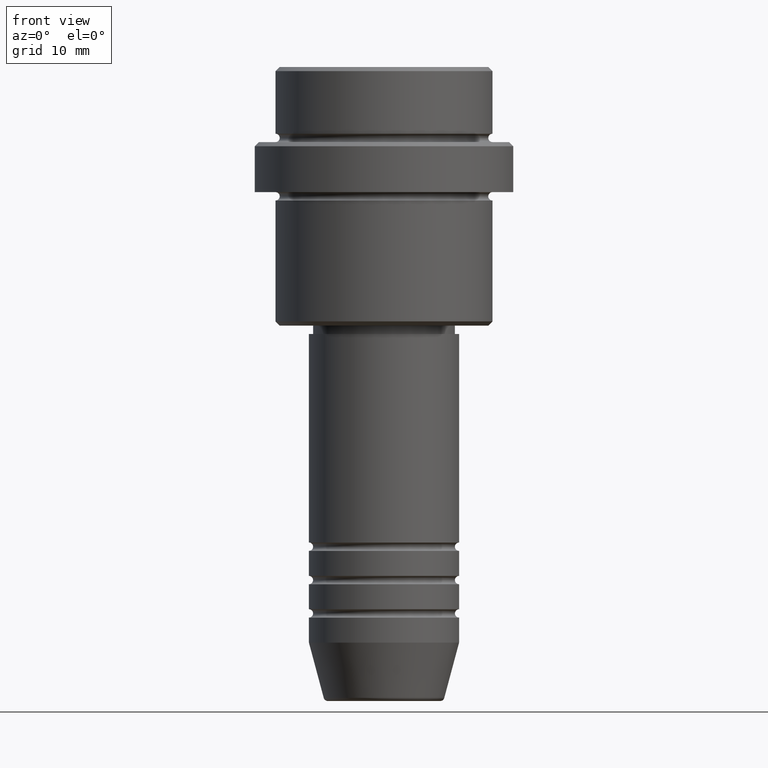
[diagram: clean part render]
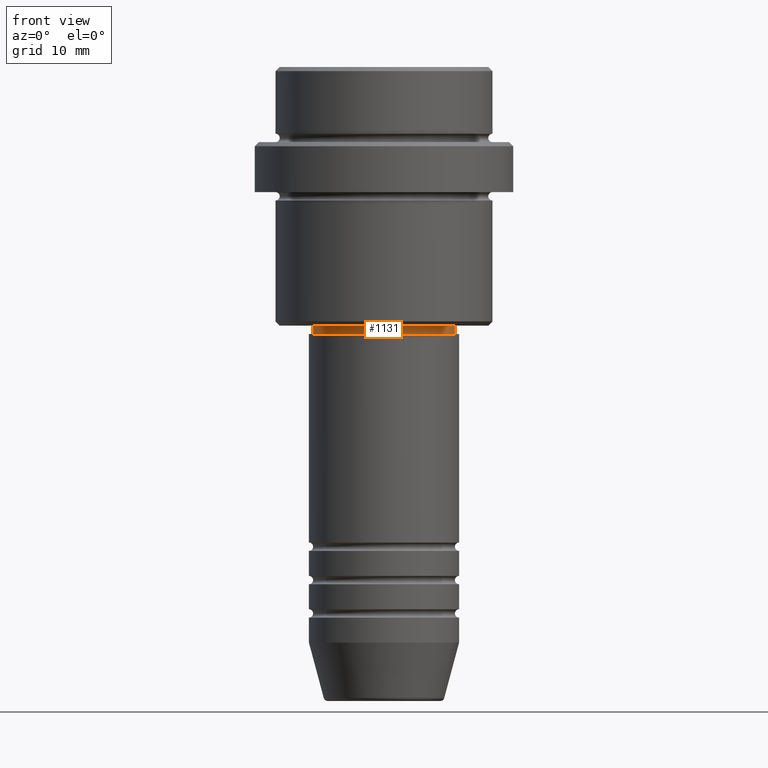
[diagram: same view with one face highlighted and labeled with its STEP entity id]
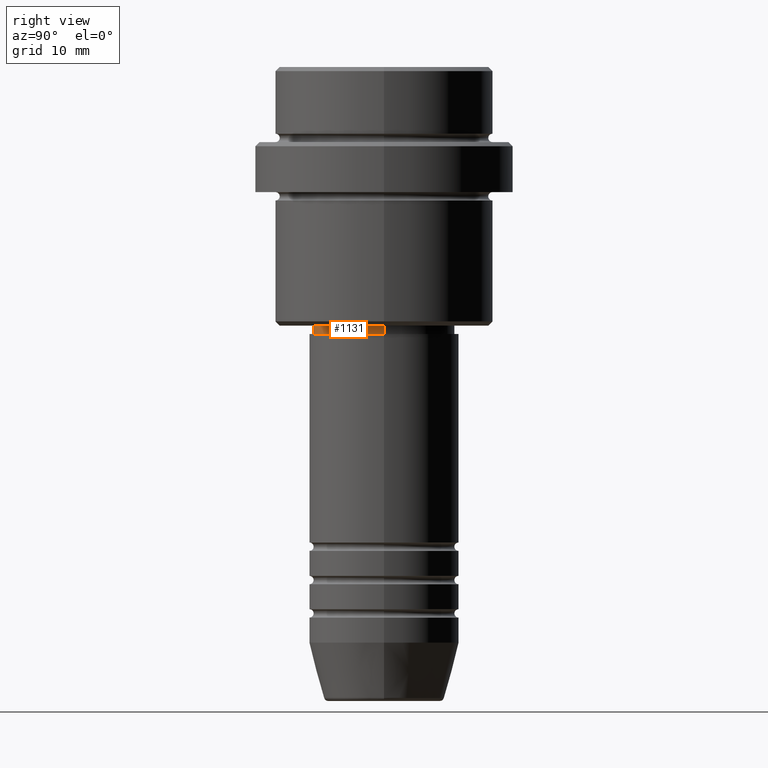
[diagram: same view with one face highlighted and labeled with its STEP entity id]
A machine part, front view. The second image highlights one B-rep face of the part: STEP entity #1131.
A second angle (right view) of the same face is appended — the face is thin or edge-on in the first view.
In plain terms, the highlighted cylindrical surface (partial cylindrical patch) has radius 8.5 mm, axis along (-0, -0, 1).
Its self-contained STEP definition (entity closure, byte-faithful):
#144 = VERTEX_POINT ( 'NONE', #1338 ) ;
#171 = CARTESIAN_POINT ( 'NONE',  ( 8.499999999999994671, 0.000000000000000000, -31.00000000000000000 ) ) ;
#183 = CARTESIAN_POINT ( 'NONE',  ( 8.499999999999996447, 0.000000000000000000, -32.00000000000000000 ) ) ;
#225 = CYLINDRICAL_SURFACE ( 'NONE', #483, 8.499999999999996447 ) ;
#231 = EDGE_CURVE ( 'NONE', #144, #246, #433, .T. ) ;
#244 = EDGE_CURVE ( 'NONE', #982, #144, #584, .T. ) ;
#246 = VERTEX_POINT ( 'NONE', #171 ) ;
#255 = DIRECTION ( 'NONE',  ( -0.000000000000000000, -0.000000000000000000, 1.000000000000000000 ) ) ;
#279 = CARTESIAN_POINT ( 'NONE',  ( 0.000000000000000000, 0.000000000000000000, -32.00000000000000000 ) ) ;
#302 = EDGE_CURVE ( 'NONE', #982, #1375, #806, .T. ) ;
#329 = FACE_OUTER_BOUND ( 'NONE', #908, .T. ) ;
#373 = DIRECTION ( 'NONE',  ( -0.000000000000000000, -0.000000000000000000, 1.000000000000000000 ) ) ;
#433 = CIRCLE ( 'NONE', #1048, 8.499999999999994671 ) ;
#474 = EDGE_CURVE ( 'NONE', #1375, #246, #952, .T. ) ;
#483 = AXIS2_PLACEMENT_3D ( 'NONE', #665, #1116, #862 ) ;
#506 = DIRECTION ( 'NONE',  ( -0.000000000000000000, -0.000000000000000000, 1.000000000000000000 ) ) ;
#523 = ORIENTED_EDGE ( 'NONE', *, *, #231, .F. ) ;
#574 = ORIENTED_EDGE ( 'NONE', *, *, #474, .T. ) ;
#584 = LINE ( 'NONE', #917, #1246 ) ;
#628 = DIRECTION ( 'NONE',  ( 1.000000000000000000, 0.000000000000000000, 0.000000000000000000 ) ) ;
#665 = CARTESIAN_POINT ( 'NONE',  ( 0.000000000000000000, 0.000000000000000000, 0.000000000000000000 ) ) ;
#746 = DIRECTION ( 'NONE',  ( -0.000000000000000000, -0.000000000000000000, 1.000000000000000000 ) ) ;
#806 = CIRCLE ( 'NONE', #1364, 8.499999999999996447 ) ;
#845 = ORIENTED_EDGE ( 'NONE', *, *, #302, .T. ) ;
#862 = DIRECTION ( 'NONE',  ( 1.000000000000000000, 0.000000000000000000, 0.000000000000000000 ) ) ;
#882 = VECTOR ( 'NONE', #506, 1000.000000000000000 ) ;
#908 = EDGE_LOOP ( 'NONE', ( #988, #845, #574, #523 ) ) ;
#917 = CARTESIAN_POINT ( 'NONE',  ( -8.499999999999996447, 1.040949779275249943E-15, 0.000000000000000000 ) ) ;
#952 = LINE ( 'NONE', #1071, #882 ) ;
#982 = VERTEX_POINT ( 'NONE', #1274 ) ;
#988 = ORIENTED_EDGE ( 'NONE', *, *, #244, .F. ) ;
#1048 = AXIS2_PLACEMENT_3D ( 'NONE', #1369, #373, #1240 ) ;
#1071 = CARTESIAN_POINT ( 'NONE',  ( 8.499999999999996447, 0.000000000000000000, 0.000000000000000000 ) ) ;
#1116 = DIRECTION ( 'NONE',  ( -0.000000000000000000, -0.000000000000000000, 1.000000000000000000 ) ) ;
#1131 = ADVANCED_FACE ( 'NONE', ( #329 ), #225, .T. ) ;
#1240 = DIRECTION ( 'NONE',  ( 1.000000000000000000, 0.000000000000000000, 0.000000000000000000 ) ) ;
#1246 = VECTOR ( 'NONE', #255, 1000.000000000000000 ) ;
#1274 = CARTESIAN_POINT ( 'NONE',  ( -8.499999999999996447, 1.040949779275249943E-15, -32.00000000000000000 ) ) ;
#1338 = CARTESIAN_POINT ( 'NONE',  ( -8.499999999999994671, 1.040949779275249745E-15, -31.00000000000000000 ) ) ;
#1364 = AXIS2_PLACEMENT_3D ( 'NONE', #279, #746, #628 ) ;
#1369 = CARTESIAN_POINT ( 'NONE',  ( 0.000000000000000000, 0.000000000000000000, -31.00000000000000000 ) ) ;
#1375 = VERTEX_POINT ( 'NONE', #183 ) ;